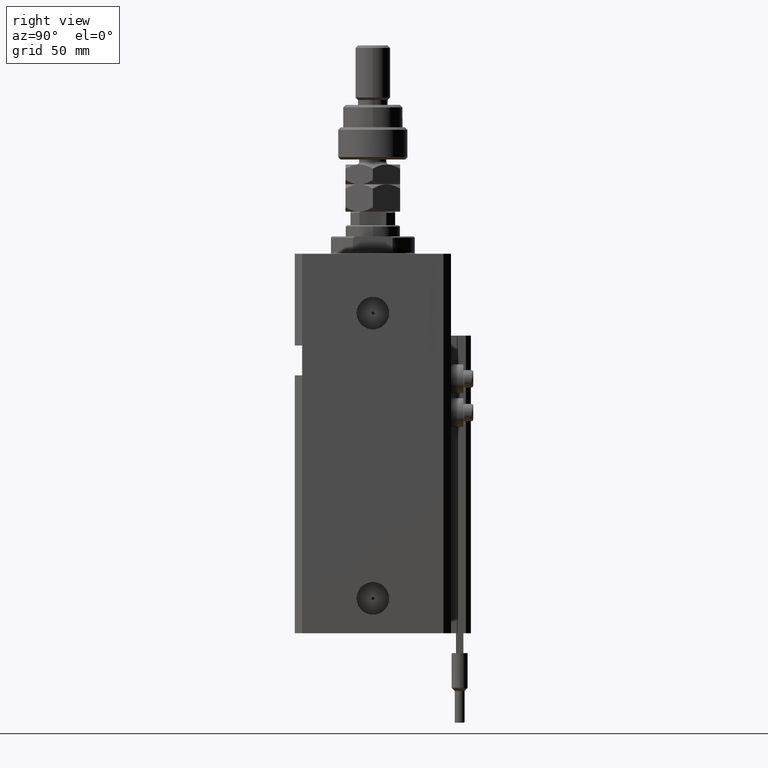
[diagram: clean part render]
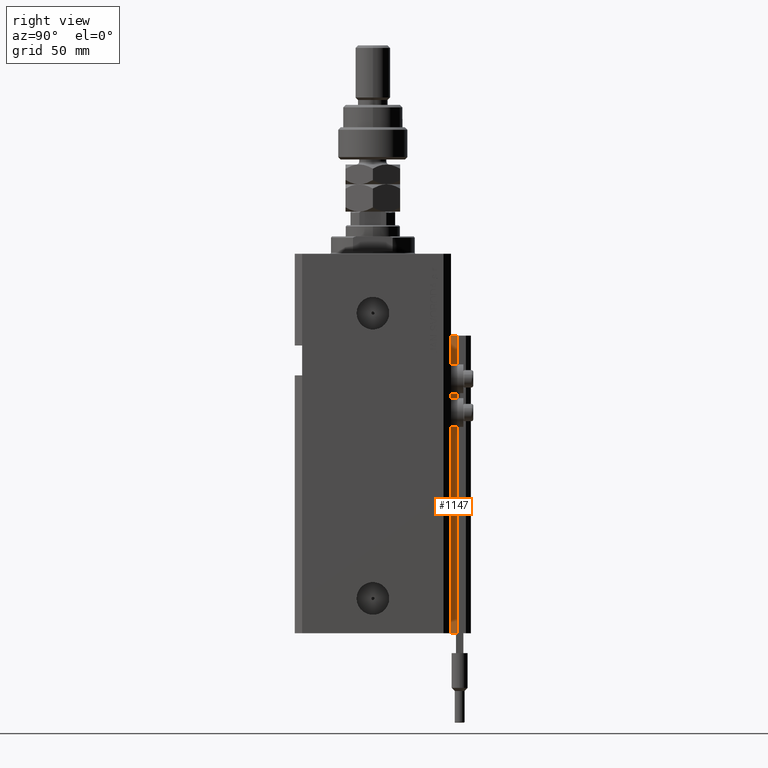
[diagram: same view with one face highlighted and labeled with its STEP entity id]
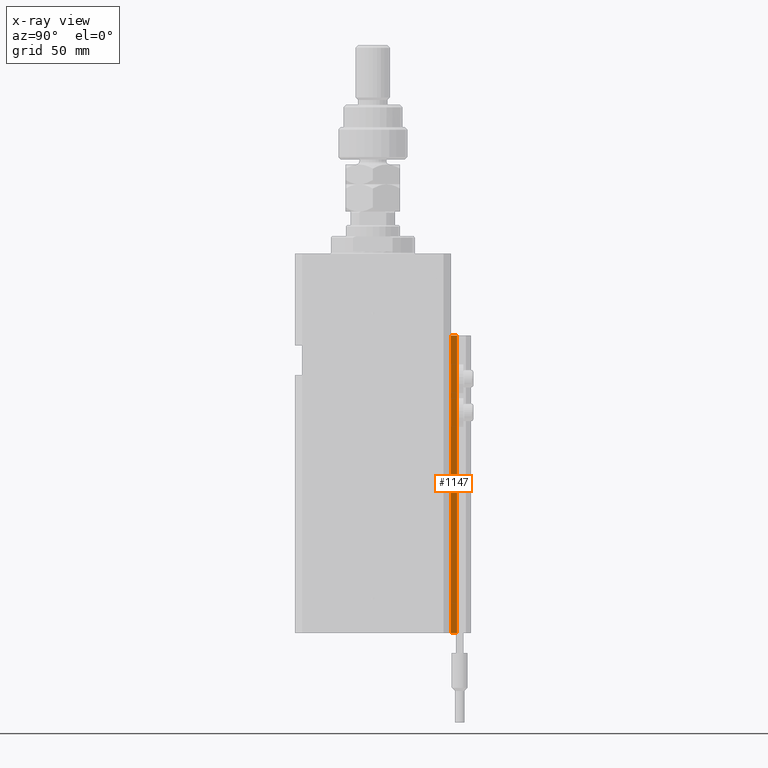
[diagram: x-ray of the same camera — body ghosted, the highlighted face saturated]
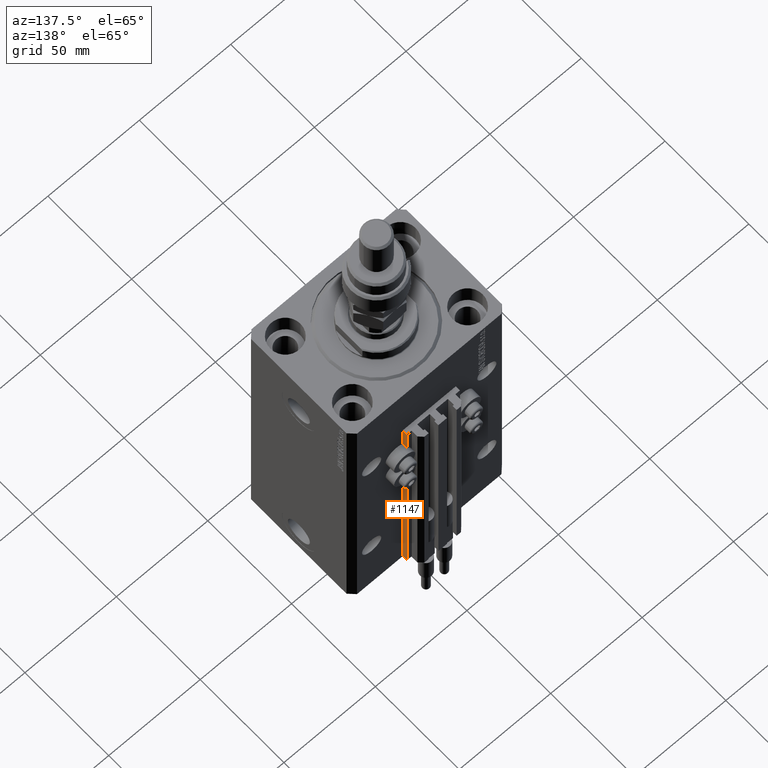
[diagram: same view with one face highlighted and labeled with its STEP entity id]
A machine part, right view. The second image highlights one B-rep face of the part: STEP entity #1147.
The next image is the same camera in x-ray: the body ghosted, the highlighted face saturated — about 0% of this face is hidden behind the body in this view.
A second angle (auxiliary view) of the same face is appended — the face is thin or edge-on in the first view.
In plain terms, the highlighted planar face has unit normal (1, 0, 0).
Its self-contained STEP definition (entity closure, byte-faithful):
#94 = LINE ( 'NONE', #4318, #2844 ) ;
#1147 = ADVANCED_FACE ( 'NONE', ( #22680 ), #23200, .T. ) ;
#1971 = VERTEX_POINT ( 'NONE', #2301 ) ;
#2301 = CARTESIAN_POINT ( 'NONE',  ( 14.49999999999999645, 34.00000000000001421, -33.00000000000000000 ) ) ;
#2568 = CARTESIAN_POINT ( 'NONE',  ( 14.49999999999999645, 31.50000000000000000, -153.0000000000000000 ) ) ;
#2844 = VECTOR ( 'NONE', #23902, 1000.000000000000000 ) ;
#4318 = CARTESIAN_POINT ( 'NONE',  ( 14.49999999999999645, 31.50000000000000000, -33.00000000000000000 ) ) ;
#4647 = EDGE_CURVE ( 'NONE', #23977, #1971, #45046, .T. ) ;
#4853 = DIRECTION ( 'NONE',  ( 0.000000000000000000, 0.000000000000000000, 1.000000000000000000 ) ) ;
#5111 = VECTOR ( 'NONE', #4853, 1000.000000000000000 ) ;
#9573 = EDGE_CURVE ( 'NONE', #46904, #42380, #46338, .T. ) ;
#11724 = CARTESIAN_POINT ( 'NONE',  ( 14.49999999999999645, 31.50000000000000000, -153.0000000000000000 ) ) ;
#14350 = CARTESIAN_POINT ( 'NONE',  ( 14.49999999999999645, 31.50000000000000000, -153.0000000000000000 ) ) ;
#18711 = DIRECTION ( 'NONE',  ( 1.000000000000000000, 0.000000000000000000, 0.000000000000000000 ) ) ;
#21773 = EDGE_LOOP ( 'NONE', ( #27610, #41254, #35258, #51354 ) ) ;
#22680 = FACE_OUTER_BOUND ( 'NONE', #21773, .T. ) ;
#23200 = PLANE ( 'NONE',  #24406 ) ;
#23789 = EDGE_CURVE ( 'NONE', #42380, #1971, #94, .T. ) ;
#23902 = DIRECTION ( 'NONE',  ( 0.000000000000000000, 1.000000000000000000, 0.000000000000000000 ) ) ;
#23977 = VERTEX_POINT ( 'NONE', #38138 ) ;
#24406 = AXIS2_PLACEMENT_3D ( 'NONE', #2568, #18711, #35605 ) ;
#27610 = ORIENTED_EDGE ( 'NONE', *, *, #23789, .F. ) ;
#31825 = LINE ( 'NONE', #11724, #50519 ) ;
#32114 = CARTESIAN_POINT ( 'NONE',  ( 14.49999999999999645, 34.00000000000001421, -153.0000000000000000 ) ) ;
#33037 = VECTOR ( 'NONE', #34694, 1000.000000000000000 ) ;
#33232 = CARTESIAN_POINT ( 'NONE',  ( 14.49999999999999645, 31.50000000000000000, -153.0000000000000000 ) ) ;
#33714 = EDGE_CURVE ( 'NONE', #46904, #23977, #31825, .T. ) ;
#34694 = DIRECTION ( 'NONE',  ( 0.000000000000000000, 0.000000000000000000, 1.000000000000000000 ) ) ;
#35258 = ORIENTED_EDGE ( 'NONE', *, *, #33714, .T. ) ;
#35605 = DIRECTION ( 'NONE',  ( 0.000000000000000000, 0.000000000000000000, -1.000000000000000000 ) ) ;
#36501 = CARTESIAN_POINT ( 'NONE',  ( 14.49999999999999645, 31.50000000000000000, -33.00000000000000000 ) ) ;
#38138 = CARTESIAN_POINT ( 'NONE',  ( 14.49999999999999645, 34.00000000000001421, -153.0000000000000000 ) ) ;
#40030 = DIRECTION ( 'NONE',  ( 0.000000000000000000, 1.000000000000000000, 0.000000000000000000 ) ) ;
#41254 = ORIENTED_EDGE ( 'NONE', *, *, #9573, .F. ) ;
#42380 = VERTEX_POINT ( 'NONE', #36501 ) ;
#45046 = LINE ( 'NONE', #32114, #5111 ) ;
#46338 = LINE ( 'NONE', #14350, #33037 ) ;
#46904 = VERTEX_POINT ( 'NONE', #33232 ) ;
#50519 = VECTOR ( 'NONE', #40030, 1000.000000000000000 ) ;
#51354 = ORIENTED_EDGE ( 'NONE', *, *, #4647, .T. ) ;